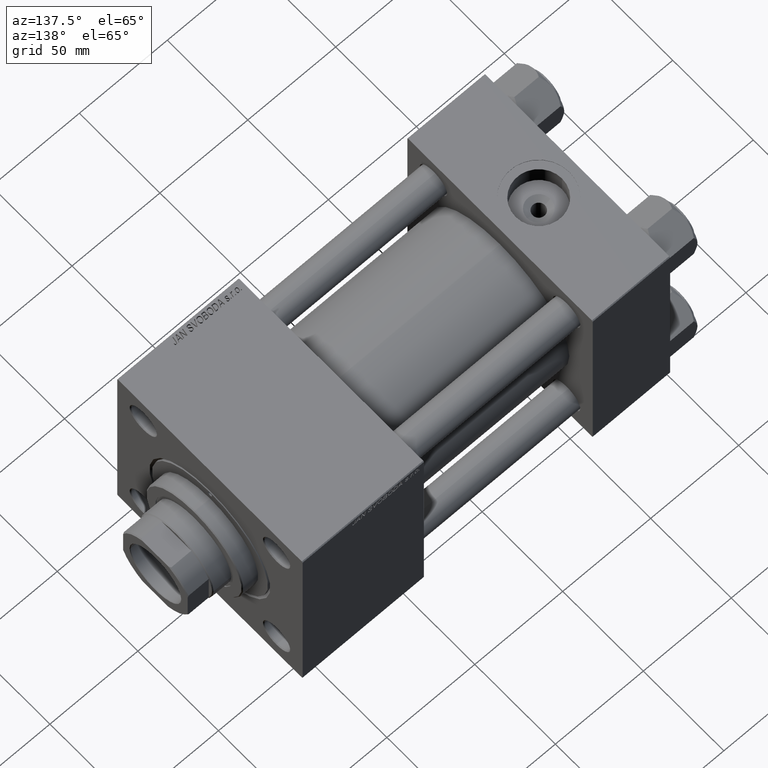
[diagram: clean part render]
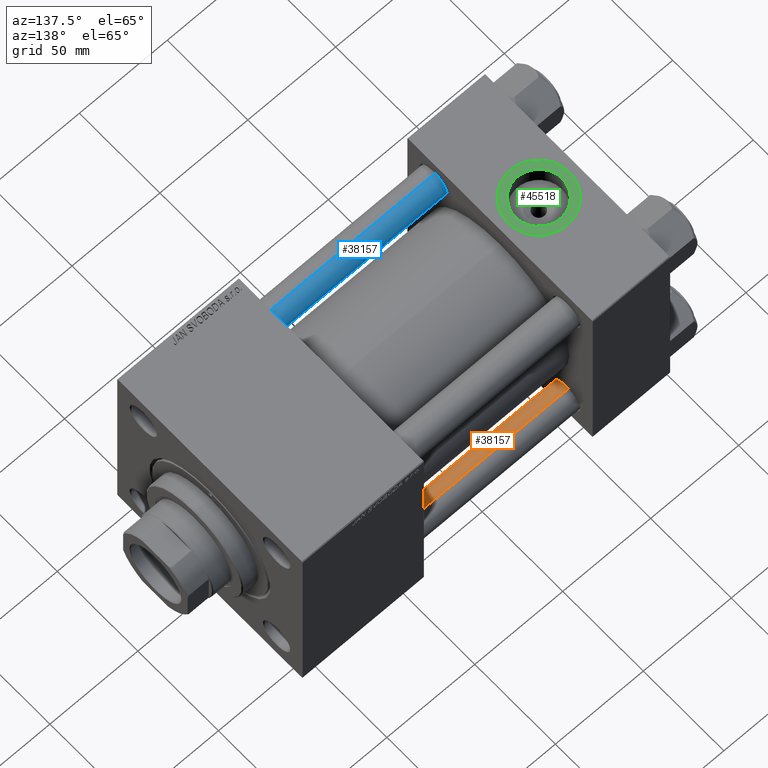
[diagram: same view with three faces highlighted in distinct colors, each labeled with its STEP entity id]
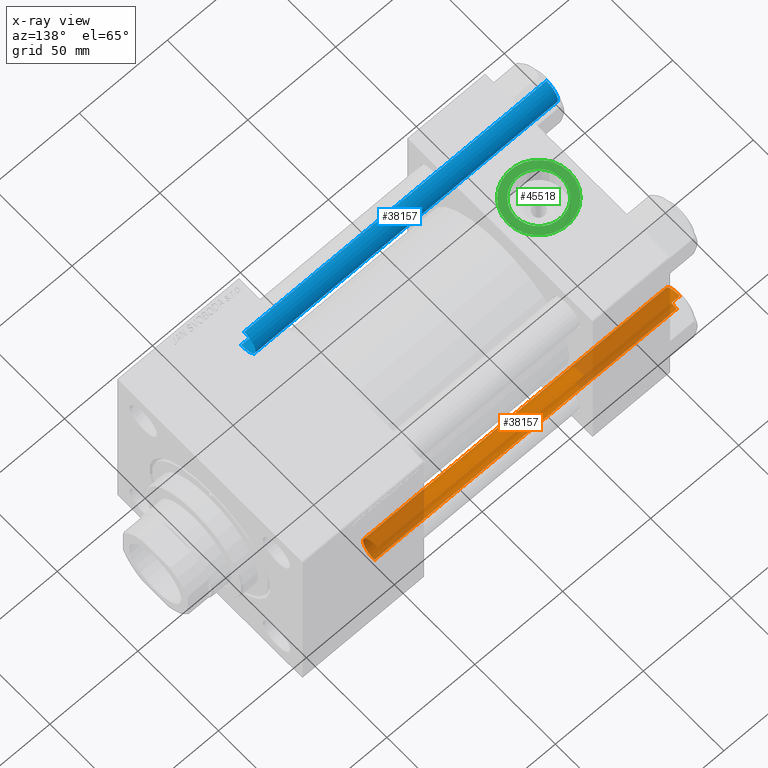
[diagram: x-ray of the same camera — body ghosted, the three highlighted faces saturated]
A machine part, auxiliary view with three faces highlighted in distinct colors.
The next image is the same camera in x-ray (body ghosted, the three faces saturated) — at least one of them is partly hidden behind the body in this view.
Their STEP definitions:

[orange] entity #38157 — the highlighted cylindrical surface (edge-blend (fillet) strip) has radius 8 mm, axis along (1, -0, 0).
#404 = EDGE_CURVE ( 'NONE', #12069, #27235, #38922, .T. ) ;
#2193 = DIRECTION ( 'NONE',  ( 1.000000000000000000, 0.000000000000000000, 0.000000000000000000 ) ) ;
#4939 = CYLINDRICAL_SURFACE ( 'NONE', #19044, 8.000000000000000000 ) ;
#6379 = CARTESIAN_POINT ( 'NONE',  ( 8.000000000000000000, 9.797174393178825657E-16, 0.4999999999999449329 ) ) ;
#6612 = CIRCLE ( 'NONE', #45969, 8.000000000000000000 ) ;
#7587 = CARTESIAN_POINT ( 'NONE',  ( -8.000000000000000000, 0.000000000000000000, 0.4999999999999449329 ) ) ;
#8548 = AXIS2_PLACEMENT_3D ( 'NONE', #29390, #29646, #2193 ) ;
#8703 = CARTESIAN_POINT ( 'NONE',  ( -8.000000000000000000, 0.000000000000000000, 172.5000000000000000 ) ) ;
#9924 = LINE ( 'NONE', #33556, #28063 ) ;
#12069 = VERTEX_POINT ( 'NONE', #8703 ) ;
#13031 = EDGE_CURVE ( 'NONE', #27235, #35522, #6612, .T. ) ;
#15718 = VERTEX_POINT ( 'NONE', #27630 ) ;
#17573 = ORIENTED_EDGE ( 'NONE', *, *, #22654, .T. ) ;
#19044 = AXIS2_PLACEMENT_3D ( 'NONE', #44214, #21570, #29030 ) ;
#21570 = DIRECTION ( 'NONE',  ( -0.000000000000000000, -0.000000000000000000, -1.000000000000000000 ) ) ;
#22654 = EDGE_CURVE ( 'NONE', #15718, #12069, #48764, .T. ) ;
#22761 = CARTESIAN_POINT ( 'NONE',  ( -8.000000000000000000, 0.000000000000000000, 173.0000000000000000 ) ) ;
#23008 = DIRECTION ( 'NONE',  ( -0.000000000000000000, -0.000000000000000000, -1.000000000000000000 ) ) ;
#25168 = VECTOR ( 'NONE', #23008, 1000.000000000000000 ) ;
#27235 = VERTEX_POINT ( 'NONE', #7587 ) ;
#27630 = CARTESIAN_POINT ( 'NONE',  ( 8.000000000000000000, 9.797174393178825657E-16, 172.5000000000000000 ) ) ;
#28063 = VECTOR ( 'NONE', #49260, 1000.000000000000000 ) ;
#28472 = DIRECTION ( 'NONE',  ( -0.000000000000000000, -0.000000000000000000, 1.000000000000000000 ) ) ;
#29030 = DIRECTION ( 'NONE',  ( -1.000000000000000000, 0.000000000000000000, 0.000000000000000000 ) ) ;
#29390 = CARTESIAN_POINT ( 'NONE',  ( 0.000000000000000000, 0.000000000000000000, 172.5000000000000000 ) ) ;
#29646 = DIRECTION ( 'NONE',  ( 0.000000000000000000, 0.000000000000000000, -1.000000000000000000 ) ) ;
#31808 = DIRECTION ( 'NONE',  ( 1.000000000000000000, 0.000000000000000000, 0.000000000000000000 ) ) ;
#32765 = ORIENTED_EDGE ( 'NONE', *, *, #13031, .T. ) ;
#33556 = CARTESIAN_POINT ( 'NONE',  ( 8.000000000000000000, 9.797174393178825657E-16, 173.0000000000000000 ) ) ;
#34435 = EDGE_LOOP ( 'NONE', ( #45954, #17573, #50047, #32765 ) ) ;
#35522 = VERTEX_POINT ( 'NONE', #6379 ) ;
#36687 = CARTESIAN_POINT ( 'NONE',  ( 0.000000000000000000, 0.000000000000000000, 0.4999999999999449329 ) ) ;
#37344 = EDGE_CURVE ( 'NONE', #15718, #35522, #9924, .T. ) ;
#38157 = ADVANCED_FACE ( 'NONE', ( #43953 ), #4939, .T. ) ;
#38922 = LINE ( 'NONE', #22761, #25168 ) ;
#43953 = FACE_OUTER_BOUND ( 'NONE', #34435, .T. ) ;
#44214 = CARTESIAN_POINT ( 'NONE',  ( 0.000000000000000000, 0.000000000000000000, 173.0000000000000000 ) ) ;
#45954 = ORIENTED_EDGE ( 'NONE', *, *, #37344, .F. ) ;
#45969 = AXIS2_PLACEMENT_3D ( 'NONE', #36687, #28472, #31808 ) ;
#48764 = CIRCLE ( 'NONE', #8548, 8.000000000000000000 ) ;
#49260 = DIRECTION ( 'NONE',  ( -0.000000000000000000, -0.000000000000000000, -1.000000000000000000 ) ) ;
#50047 = ORIENTED_EDGE ( 'NONE', *, *, #404, .T. ) ;

[blue] entity #38157 — the highlighted cylindrical surface (edge-blend (fillet) strip) has radius 8 mm, axis along (1, 0, -0).
#404 = EDGE_CURVE ( 'NONE', #12069, #27235, #38922, .T. ) ;
#2193 = DIRECTION ( 'NONE',  ( 1.000000000000000000, 0.000000000000000000, 0.000000000000000000 ) ) ;
#4939 = CYLINDRICAL_SURFACE ( 'NONE', #19044, 8.000000000000000000 ) ;
#6379 = CARTESIAN_POINT ( 'NONE',  ( 8.000000000000000000, 9.797174393178825657E-16, 0.4999999999999449329 ) ) ;
#6612 = CIRCLE ( 'NONE', #45969, 8.000000000000000000 ) ;
#7587 = CARTESIAN_POINT ( 'NONE',  ( -8.000000000000000000, 0.000000000000000000, 0.4999999999999449329 ) ) ;
#8548 = AXIS2_PLACEMENT_3D ( 'NONE', #29390, #29646, #2193 ) ;
#8703 = CARTESIAN_POINT ( 'NONE',  ( -8.000000000000000000, 0.000000000000000000, 172.5000000000000000 ) ) ;
#9924 = LINE ( 'NONE', #33556, #28063 ) ;
#12069 = VERTEX_POINT ( 'NONE', #8703 ) ;
#13031 = EDGE_CURVE ( 'NONE', #27235, #35522, #6612, .T. ) ;
#15718 = VERTEX_POINT ( 'NONE', #27630 ) ;
#17573 = ORIENTED_EDGE ( 'NONE', *, *, #22654, .T. ) ;
#19044 = AXIS2_PLACEMENT_3D ( 'NONE', #44214, #21570, #29030 ) ;
#21570 = DIRECTION ( 'NONE',  ( -0.000000000000000000, -0.000000000000000000, -1.000000000000000000 ) ) ;
#22654 = EDGE_CURVE ( 'NONE', #15718, #12069, #48764, .T. ) ;
#22761 = CARTESIAN_POINT ( 'NONE',  ( -8.000000000000000000, 0.000000000000000000, 173.0000000000000000 ) ) ;
#23008 = DIRECTION ( 'NONE',  ( -0.000000000000000000, -0.000000000000000000, -1.000000000000000000 ) ) ;
#25168 = VECTOR ( 'NONE', #23008, 1000.000000000000000 ) ;
#27235 = VERTEX_POINT ( 'NONE', #7587 ) ;
#27630 = CARTESIAN_POINT ( 'NONE',  ( 8.000000000000000000, 9.797174393178825657E-16, 172.5000000000000000 ) ) ;
#28063 = VECTOR ( 'NONE', #49260, 1000.000000000000000 ) ;
#28472 = DIRECTION ( 'NONE',  ( -0.000000000000000000, -0.000000000000000000, 1.000000000000000000 ) ) ;
#29030 = DIRECTION ( 'NONE',  ( -1.000000000000000000, 0.000000000000000000, 0.000000000000000000 ) ) ;
#29390 = CARTESIAN_POINT ( 'NONE',  ( 0.000000000000000000, 0.000000000000000000, 172.5000000000000000 ) ) ;
#29646 = DIRECTION ( 'NONE',  ( 0.000000000000000000, 0.000000000000000000, -1.000000000000000000 ) ) ;
#31808 = DIRECTION ( 'NONE',  ( 1.000000000000000000, 0.000000000000000000, 0.000000000000000000 ) ) ;
#32765 = ORIENTED_EDGE ( 'NONE', *, *, #13031, .T. ) ;
#33556 = CARTESIAN_POINT ( 'NONE',  ( 8.000000000000000000, 9.797174393178825657E-16, 173.0000000000000000 ) ) ;
#34435 = EDGE_LOOP ( 'NONE', ( #45954, #17573, #50047, #32765 ) ) ;
#35522 = VERTEX_POINT ( 'NONE', #6379 ) ;
#36687 = CARTESIAN_POINT ( 'NONE',  ( 0.000000000000000000, 0.000000000000000000, 0.4999999999999449329 ) ) ;
#37344 = EDGE_CURVE ( 'NONE', #15718, #35522, #9924, .T. ) ;
#38157 = ADVANCED_FACE ( 'NONE', ( #43953 ), #4939, .T. ) ;
#38922 = LINE ( 'NONE', #22761, #25168 ) ;
#43953 = FACE_OUTER_BOUND ( 'NONE', #34435, .T. ) ;
#44214 = CARTESIAN_POINT ( 'NONE',  ( 0.000000000000000000, 0.000000000000000000, 173.0000000000000000 ) ) ;
#45954 = ORIENTED_EDGE ( 'NONE', *, *, #37344, .F. ) ;
#45969 = AXIS2_PLACEMENT_3D ( 'NONE', #36687, #28472, #31808 ) ;
#48764 = CIRCLE ( 'NONE', #8548, 8.000000000000000000 ) ;
#49260 = DIRECTION ( 'NONE',  ( -0.000000000000000000, -0.000000000000000000, -1.000000000000000000 ) ) ;
#50047 = ORIENTED_EDGE ( 'NONE', *, *, #404, .T. ) ;

[green] entity #45518 — the highlighted planar face has unit normal (0, 0, 1).
#938 = DIRECTION ( 'NONE',  ( 0.000000000000000000, 0.000000000000000000, 1.000000000000000000 ) ) ;
#1459 = CARTESIAN_POINT ( 'NONE',  ( 22.00000000000000000, -8.673617379884035472E-15, 57.30000000000000426 ) ) ;
#4184 = CARTESIAN_POINT ( 'NONE',  ( 35.21999999999999886, -8.673617379884035472E-15, 57.30000000000000426 ) ) ;
#7094 = AXIS2_PLACEMENT_3D ( 'NONE', #47199, #47711, #36372 ) ;
#7295 = DIRECTION ( 'NONE',  ( 0.000000000000000000, 0.000000000000000000, 1.000000000000000000 ) ) ;
#7315 = DIRECTION ( 'NONE',  ( 1.000000000000000000, 0.000000000000000000, 0.000000000000000000 ) ) ;
#7562 = DIRECTION ( 'NONE',  ( 0.000000000000000000, 0.000000000000000000, 1.000000000000000000 ) ) ;
#9214 = CARTESIAN_POINT ( 'NONE',  ( 39.50000000000000000, -8.673617379884035472E-15, 57.30000000000000426 ) ) ;
#9462 = VERTEX_POINT ( 'NONE', #9214 ) ;
#10306 = VERTEX_POINT ( 'NONE', #4184 ) ;
#10987 = VERTEX_POINT ( 'NONE', #38843 ) ;
#11632 = CARTESIAN_POINT ( 'NONE',  ( 22.00000000000000000, -8.673617379884035472E-15, 57.30000000000000426 ) ) ;
#14654 = ORIENTED_EDGE ( 'NONE', *, *, #22451, .F. ) ;
#15828 = FACE_OUTER_BOUND ( 'NONE', #27502, .T. ) ;
#16715 = CARTESIAN_POINT ( 'NONE',  ( 4.499999999999997335, -6.530485481376167224E-15, 57.30000000000000426 ) ) ;
#16865 = AXIS2_PLACEMENT_3D ( 'NONE', #1459, #938, #36858 ) ;
#18599 = ORIENTED_EDGE ( 'NONE', *, *, #26010, .F. ) ;
#19353 = CARTESIAN_POINT ( 'NONE',  ( 22.00000000000000000, -8.673617379884035472E-15, 57.30000000000000426 ) ) ;
#20225 = EDGE_CURVE ( 'NONE', #9462, #38141, #23914, .T. ) ;
#20445 = FACE_BOUND ( 'NONE', #43871, .T. ) ;
#22451 = EDGE_CURVE ( 'NONE', #10987, #10306, #32326, .T. ) ;
#23420 = CIRCLE ( 'NONE', #16865, 13.22000000000000242 ) ;
#23914 = CIRCLE ( 'NONE', #47717, 17.50000000000000000 ) ;
#26010 = EDGE_CURVE ( 'NONE', #10306, #10987, #23420, .T. ) ;
#27502 = EDGE_LOOP ( 'NONE', ( #44564, #33454 ) ) ;
#29907 = AXIS2_PLACEMENT_3D ( 'NONE', #11632, #7295, #38356 ) ;
#32326 = CIRCLE ( 'NONE', #50417, 13.22000000000000242 ) ;
#33454 = ORIENTED_EDGE ( 'NONE', *, *, #42120, .T. ) ;
#35092 = DIRECTION ( 'NONE',  ( 0.000000000000000000, 0.000000000000000000, 1.000000000000000000 ) ) ;
#35875 = PLANE ( 'NONE',  #7094 ) ;
#36372 = DIRECTION ( 'NONE',  ( 1.000000000000000000, 0.000000000000000000, -0.000000000000000000 ) ) ;
#36858 = DIRECTION ( 'NONE',  ( 1.000000000000000000, 0.000000000000000000, 0.000000000000000000 ) ) ;
#38141 = VERTEX_POINT ( 'NONE', #16715 ) ;
#38356 = DIRECTION ( 'NONE',  ( 1.000000000000000000, 0.000000000000000000, 0.000000000000000000 ) ) ;
#38843 = CARTESIAN_POINT ( 'NONE',  ( 8.779999999999994031, -7.054634311411234321E-15, 57.30000000000000426 ) ) ;
#39181 = CARTESIAN_POINT ( 'NONE',  ( 22.00000000000000000, -8.673617379884035472E-15, 57.30000000000000426 ) ) ;
#42120 = EDGE_CURVE ( 'NONE', #38141, #9462, #43052, .T. ) ;
#43052 = CIRCLE ( 'NONE', #29907, 17.50000000000000000 ) ;
#43871 = EDGE_LOOP ( 'NONE', ( #18599, #14654 ) ) ;
#44564 = ORIENTED_EDGE ( 'NONE', *, *, #20225, .T. ) ;
#45518 = ADVANCED_FACE ( 'NONE', ( #20445, #15828 ), #35875, .T. ) ;
#46664 = DIRECTION ( 'NONE',  ( 1.000000000000000000, 0.000000000000000000, 0.000000000000000000 ) ) ;
#47199 = CARTESIAN_POINT ( 'NONE',  ( 22.00000000000000000, -8.673617379884035472E-15, 57.30000000000000426 ) ) ;
#47711 = DIRECTION ( 'NONE',  ( 0.000000000000000000, 0.000000000000000000, 1.000000000000000000 ) ) ;
#47717 = AXIS2_PLACEMENT_3D ( 'NONE', #19353, #7562, #7315 ) ;
#50417 = AXIS2_PLACEMENT_3D ( 'NONE', #39181, #35092, #46664 ) ;